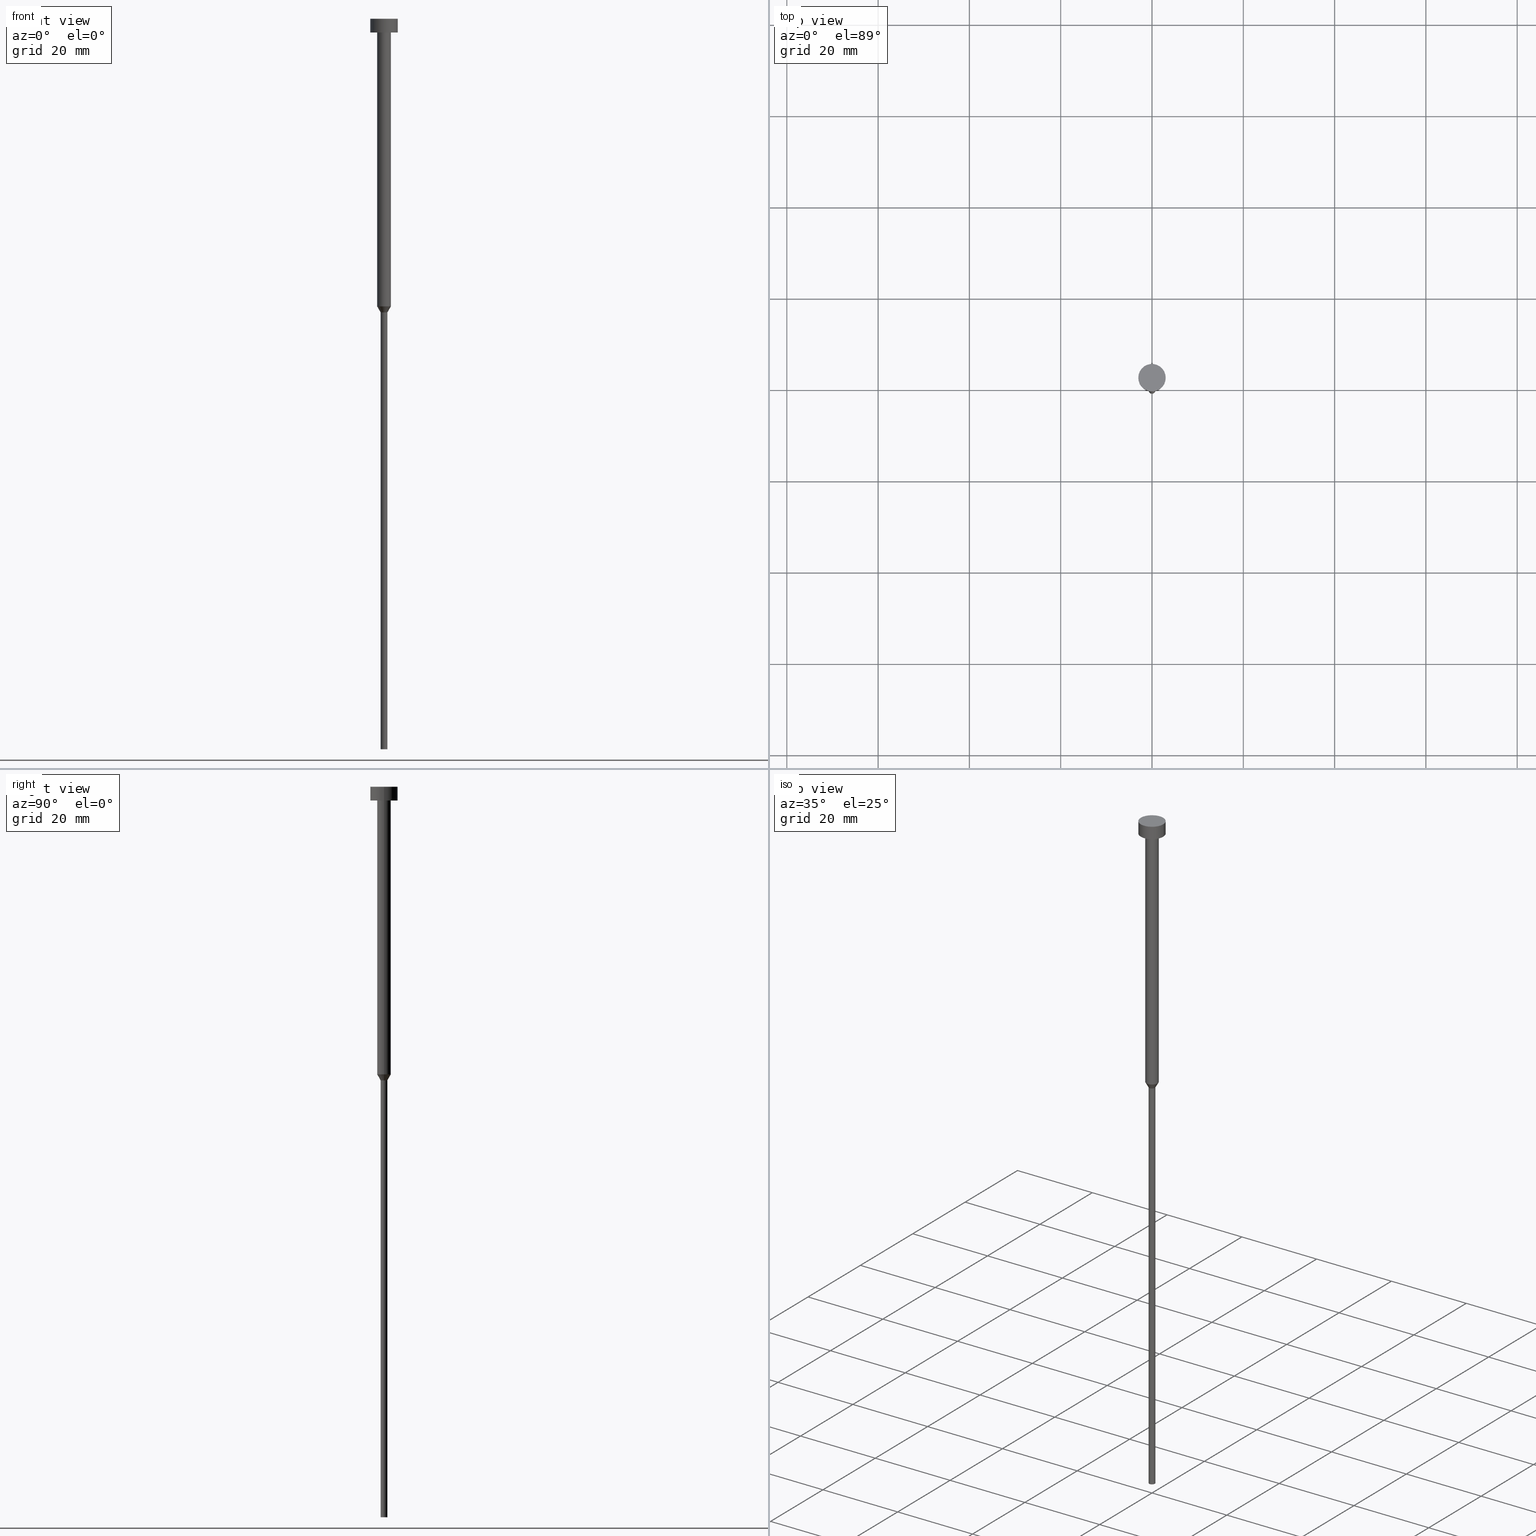
[diagram: canonical four-view strip — front | top / right | iso, engineering-drawing reading convention]
A machine part, canonical four-view strip (front | top / right | iso — engineering-drawing reading convention). The complete STEP part file that produces these views, byte-faithful:
ISO-10303-21;
HEADER;
FILE_DESCRIPTION (( 'STEP AP203' ),
    '1' );
FILE_NAME ('e818.STEP',
    '2023-02-13T10:02:30',
    ( '' ),
    ( '' ),
    'SwSTEP 2.0',
    'SolidWorks 2019',
    '' );
FILE_SCHEMA (( 'CONFIG_CONTROL_DESIGN' ));
ENDSEC;

DATA;
#1 = DIRECTION ( 'NONE',  ( -0.000000000000000000, -0.000000000000000000, 1.000000000000000000 ) ) ;
#2 = CARTESIAN_POINT ( 'NONE',  ( 0.7500000000000000000, 0.000000000000000000, 0.000000000000000000 ) ) ;
#3 =( GEOMETRIC_REPRESENTATION_CONTEXT ( 3 ) GLOBAL_UNCERTAINTY_ASSIGNED_CONTEXT ( ( #133 ) ) GLOBAL_UNIT_ASSIGNED_CONTEXT ( ( #239, #72, #183 ) ) REPRESENTATION_CONTEXT ( 'NONE', 'WORKASPACE' ) );
#4 = APPROVAL ( #98, 'NEUR�EN�' ) ;
#5 = CARTESIAN_POINT ( 'NONE',  ( 0.000000000000000000, 0.000000000000000000, -3.673940397442059868E-16 ) ) ;
#6 = CYLINDRICAL_SURFACE ( 'NONE', #177, 0.7500000000000000000 ) ;
#7 = EDGE_CURVE ( 'NONE', #68, #171, #82, .T. ) ;
#8 = ORIENTED_EDGE ( 'NONE', *, *, #110, .F. ) ;
#9 = CARTESIAN_POINT ( 'NONE',  ( 0.000000000000000000, 0.000000000000000000, -64.29903810567664380 ) ) ;
#10 = ORIENTED_EDGE ( 'NONE', *, *, #26, .T. ) ;
#11 = PERSON_AND_ORGANIZATION ( #35, #282 ) ;
#12 = VERTEX_POINT ( 'NONE', #74 ) ;
#13 = APPROVAL_ROLE ( '' ) ;
#14 = AXIS2_PLACEMENT_3D ( 'NONE', #69, #160, #37 ) ;
#15 = EDGE_LOOP ( 'NONE', ( #159, #316, #125, #127 ) ) ;
#16 = APPLICATION_PROTOCOL_DEFINITION ( 'international standard', 'config_control_design', 1994, #227 ) ;
#17 = CALENDAR_DATE ( 2023, 13, 2 ) ;
#18 = DIRECTION ( 'NONE',  ( 1.000000000000000000, 0.000000000000000000, 0.000000000000000000 ) ) ;
#19 = ORIENTED_EDGE ( 'NONE', *, *, #7, .T. ) ;
#20 = PERSON_AND_ORGANIZATION ( #35, #282 ) ;
#21 = ADVANCED_FACE ( 'NONE', ( #226 ), #168, .T. ) ;
#22 = DIRECTION ( 'NONE',  ( -0.000000000000000000, -0.000000000000000000, 1.000000000000000000 ) ) ;
#23 = CARTESIAN_POINT ( 'NONE',  ( 0.000000000000000000, 0.000000000000000000, 0.000000000000000000 ) ) ;
#24 = CYLINDRICAL_SURFACE ( 'NONE', #111, 1.500000000000000000 ) ;
#25 = AXIS2_PLACEMENT_3D ( 'NONE', #152, #124, #279 ) ;
#26 = EDGE_CURVE ( 'NONE', #153, #12, #139, .T. ) ;
#27 = DIRECTION ( 'NONE',  ( -0.5000000000000021094, 6.123233995736791920E-17, 0.8660254037844373753 ) ) ;
#28 = DIRECTION ( 'NONE',  ( -0.000000000000000000, -0.000000000000000000, 1.000000000000000000 ) ) ;
#29 = SHAPE_DEFINITION_REPRESENTATION ( #206, #81 ) ;
#30 = CARTESIAN_POINT ( 'NONE',  ( 0.000000000000000000, 0.000000000000000000, -3.000000000000000888 ) ) ;
#31 = CC_DESIGN_DATE_AND_TIME_ASSIGNMENT ( #211, #34, ( #285 ) ) ;
#32 = APPROVAL ( #135, 'NEUR�EN�' ) ;
#33 = CIRCLE ( 'NONE', #272, 0.7500000000000000000 ) ;
#34 = DATE_TIME_ROLE ( 'creation_date' ) ;
#35 = PERSON ( 'NEUR�EN�', 'NEUR�EN�', 'NEUR�EN�', ('NEUR�EN�'), ('NEUR�EN�'), ('NEUR�EN�') ) ;
#36 = CARTESIAN_POINT ( 'NONE',  ( 1.500000000000000000, 0.000000000000000000, -3.000000000000000888 ) ) ;
#37 = DIRECTION ( 'NONE',  ( 1.000000000000000000, 0.000000000000000000, 0.000000000000000000 ) ) ;
#38 = ORIENTED_EDGE ( 'NONE', *, *, #195, .F. ) ;
#39 = DIRECTION ( 'NONE',  ( 1.000000000000000000, 0.000000000000000000, 0.000000000000000000 ) ) ;
#40 = ORIENTED_EDGE ( 'NONE', *, *, #220, .F. ) ;
#41 = DIRECTION ( 'NONE',  ( -0.000000000000000000, -0.000000000000000000, 1.000000000000000000 ) ) ;
#42 = ORIENTED_EDGE ( 'NONE', *, *, #354, .F. ) ;
#43 = APPROVAL_DATE_TIME ( #294, #149 ) ;
#44 = CARTESIAN_POINT ( 'NONE',  ( -3.000000000000000000, 3.673940397442059868E-16, 0.000000000000000000 ) ) ;
#45 = EDGE_CURVE ( 'NONE', #113, #344, #320, .T. ) ;
#46 = APPROVAL_ROLE ( '' ) ;
#47 = CIRCLE ( 'NONE', #87, 0.7500000000000000000 ) ;
#48 = AXIS2_PLACEMENT_3D ( 'NONE', #257, #215, #194 ) ;
#49 = DIRECTION ( 'NONE',  ( 1.000000000000000000, 0.000000000000000000, 0.000000000000000000 ) ) ;
#50 = AXIS2_PLACEMENT_3D ( 'NONE', #355, #77, #106 ) ;
#51 = DIRECTION ( 'NONE',  ( 1.000000000000000000, 0.000000000000000000, 0.000000000000000000 ) ) ;
#52 = CARTESIAN_POINT ( 'NONE',  ( -1.500000000000000000, 1.836970198721029934E-16, -3.000000000000000888 ) ) ;
#53 = DIRECTION ( 'NONE',  ( 1.000000000000000000, 0.000000000000000000, 0.000000000000000000 ) ) ;
#54 = CC_DESIGN_SECURITY_CLASSIFICATION ( #107, ( #342 ) ) ;
#55 = EDGE_CURVE ( 'NONE', #128, #185, #78, .T. ) ;
#56 = CARTESIAN_POINT ( 'NONE',  ( 0.000000000000000000, 0.000000000000000000, 0.000000000000000000 ) ) ;
#57 = DIRECTION ( 'NONE',  ( -0.000000000000000000, -0.000000000000000000, 1.000000000000000000 ) ) ;
#58 = FACE_OUTER_BOUND ( 'NONE', #100, .T. ) ;
#59 = DIRECTION ( 'NONE',  ( 1.000000000000000000, 0.000000000000000000, 0.000000000000000000 ) ) ;
#60 = CIRCLE ( 'NONE', #163, 3.000000000000000000 ) ;
#61 = ORIENTED_EDGE ( 'NONE', *, *, #165, .T. ) ;
#62 = DIRECTION ( 'NONE',  ( -0.000000000000000000, -0.000000000000000000, 1.000000000000000000 ) ) ;
#63 = ORIENTED_EDGE ( 'NONE', *, *, #102, .F. ) ;
#64 = APPROVAL_DATE_TIME ( #181, #4 ) ;
#65 = EDGE_CURVE ( 'NONE', #89, #334, #86, .T. ) ;
#66 = ORIENTED_EDGE ( 'NONE', *, *, #93, .T. ) ;
#67 = FACE_OUTER_BOUND ( 'NONE', #244, .T. ) ;
#68 = VERTEX_POINT ( 'NONE', #204 ) ;
#69 = CARTESIAN_POINT ( 'NONE',  ( 0.000000000000000000, 0.000000000000000000, 0.000000000000000000 ) ) ;
#70 = FACE_OUTER_BOUND ( 'NONE', #286, .T. ) ;
#71 = ORIENTED_EDGE ( 'NONE', *, *, #136, .T. ) ;
#72 =( NAMED_UNIT ( * ) PLANE_ANGLE_UNIT ( ) SI_UNIT ( $, .RADIAN. ) );
#73 = ADVANCED_FACE ( 'NONE', ( #145 ), #6, .T. ) ;
#74 = CARTESIAN_POINT ( 'NONE',  ( 0.7500000000000000000, 0.000000000000000000, -64.29903810567664380 ) ) ;
#75 = VECTOR ( 'NONE', #156, 1000.000000000000000 ) ;
#76 = CYLINDRICAL_SURFACE ( 'NONE', #298, 3.000000000000000000 ) ;
#77 = DIRECTION ( 'NONE',  ( -0.000000000000000000, -0.000000000000000000, 1.000000000000000000 ) ) ;
#78 = CIRCLE ( 'NONE', #142, 3.000000000000000000 ) ;
#79 = AXIS2_PLACEMENT_3D ( 'NONE', #224, #274, #300 ) ;
#80 = CC_DESIGN_PERSON_AND_ORGANIZATION_ASSIGNMENT ( #20, #131, ( #342 ) ) ;
#81 = ADVANCED_BREP_SHAPE_REPRESENTATION ( 'e818', ( #154, #14 ), #3 ) ;
#82 = CIRCLE ( 'NONE', #287, 3.000000000000000000 ) ;
#83 = PLANE ( 'NONE',  #25 ) ;
#84 = APPLICATION_CONTEXT ( 'configuration controlled 3d designs of mechanical parts and assemblies' ) ;
#85 = ORIENTED_EDGE ( 'NONE', *, *, #93, .F. ) ;
#86 = LINE ( 'NONE', #259, #146 ) ;
#87 = AXIS2_PLACEMENT_3D ( 'NONE', #9, #172, #59 ) ;
#88 = CIRCLE ( 'NONE', #208, 1.500000000000000000 ) ;
#89 = VERTEX_POINT ( 'NONE', #202 ) ;
#90 = LOCAL_TIME ( 11, 2, 30.00000000000000000, #326 ) ;
#91 = DATE_AND_TIME ( #341, #337 ) ;
#92 = DIRECTION ( 'NONE',  ( 1.000000000000000000, 0.000000000000000000, 0.000000000000000000 ) ) ;
#93 = EDGE_CURVE ( 'NONE', #334, #344, #144, .T. ) ;
#94 = VERTEX_POINT ( 'NONE', #201 ) ;
#95 = PERSON_AND_ORGANIZATION_ROLE ( 'creator' ) ;
#96 = CARTESIAN_POINT ( 'NONE',  ( 0.000000000000000000, 0.000000000000000000, -64.29903810567664380 ) ) ;
#97 = ORIENTED_EDGE ( 'NONE', *, *, #140, .T. ) ;
#98 = APPROVAL_STATUS ( 'not_yet_approved' ) ;
#99 = DIRECTION ( 'NONE',  ( 1.000000000000000000, 0.000000000000000000, 0.000000000000000000 ) ) ;
#100 = EDGE_LOOP ( 'NONE', ( #118, #283 ) ) ;
#101 = AXIS2_PLACEMENT_3D ( 'NONE', #276, #193, #301 ) ;
#102 = EDGE_CURVE ( 'NONE', #185, #128, #60, .T. ) ;
#103 = CIRCLE ( 'NONE', #200, 0.7500000000000000000 ) ;
#104 = DIRECTION ( 'NONE',  ( -0.000000000000000000, -0.000000000000000000, 1.000000000000000000 ) ) ;
#105 = LINE ( 'NONE', #346, #233 ) ;
#106 = DIRECTION ( 'NONE',  ( 1.000000000000000000, 0.000000000000000000, 0.000000000000000000 ) ) ;
#107 = SECURITY_CLASSIFICATION ( '', '', #249 ) ;
#108 = FACE_OUTER_BOUND ( 'NONE', #236, .T. ) ;
#109 = DIRECTION ( 'NONE',  ( -0.000000000000000000, -0.000000000000000000, 1.000000000000000000 ) ) ;
#110 = EDGE_CURVE ( 'NONE', #89, #12, #47, .T. ) ;
#111 = AXIS2_PLACEMENT_3D ( 'NONE', #197, #299, #51 ) ;
#112 = DATE_AND_TIME ( #252, #90 ) ;
#113 = VERTEX_POINT ( 'NONE', #36 ) ;
#114 = CARTESIAN_POINT ( 'NONE',  ( 0.7500000000000000000, 0.000000000000000000, -160.0000000000000000 ) ) ;
#115 = DIRECTION ( 'NONE',  ( -0.000000000000000000, -0.000000000000000000, 1.000000000000000000 ) ) ;
#116 = VECTOR ( 'NONE', #186, 1000.000000000000000 ) ;
#117 = CC_DESIGN_APPROVAL ( #4, ( #285 ) ) ;
#118 = ORIENTED_EDGE ( 'NONE', *, *, #7, .F. ) ;
#119 = CC_DESIGN_PERSON_AND_ORGANIZATION_ASSIGNMENT ( #207, #151, ( #107 ) ) ;
#120 = FACE_OUTER_BOUND ( 'NONE', #278, .T. ) ;
#121 = ORIENTED_EDGE ( 'NONE', *, *, #26, .F. ) ;
#122 = COORDINATED_UNIVERSAL_TIME_OFFSET ( 1, 0, .AHEAD. ) ;
#123 = ADVANCED_FACE ( 'NONE', ( #120 ), #83, .T. ) ;
#124 = DIRECTION ( 'NONE',  ( 0.000000000000000000, 0.000000000000000000, -1.000000000000000000 ) ) ;
#125 = ORIENTED_EDGE ( 'NONE', *, *, #313, .F. ) ;
#126 = DIRECTION ( 'NONE',  ( 0.5000000000000021094, 0.000000000000000000, 0.8660254037844373753 ) ) ;
#127 = ORIENTED_EDGE ( 'NONE', *, *, #203, .F. ) ;
#128 = VERTEX_POINT ( 'NONE', #241 ) ;
#129 = APPROVAL_ROLE ( '' ) ;
#130 = CARTESIAN_POINT ( 'NONE',  ( 0.000000000000000000, 0.000000000000000000, -3.000000000000000888 ) ) ;
#131 = PERSON_AND_ORGANIZATION_ROLE ( 'design_supplier' ) ;
#132 = CC_DESIGN_APPROVAL ( #32, ( #107 ) ) ;
#133 = UNCERTAINTY_MEASURE_WITH_UNIT (LENGTH_MEASURE( 1.000000000000000082E-05 ), #239, 'distance_accuracy_value', 'NONE');
#134 = CARTESIAN_POINT ( 'NONE',  ( 0.000000000000000000, 0.000000000000000000, -3.000000000000000888 ) ) ;
#135 = APPROVAL_STATUS ( 'not_yet_approved' ) ;
#136 = EDGE_CURVE ( 'NONE', #260, #153, #242, .T. ) ;
#137 = FACE_OUTER_BOUND ( 'NONE', #262, .T. ) ;
#138 = CYLINDRICAL_SURFACE ( 'NONE', #50, 3.000000000000000000 ) ;
#139 = LINE ( 'NONE', #2, #297 ) ;
#140 = EDGE_CURVE ( 'NONE', #153, #260, #33, .T. ) ;
#141 = PRODUCT_RELATED_PRODUCT_CATEGORY ( 'detail', '', ( #238 ) ) ;
#142 = AXIS2_PLACEMENT_3D ( 'NONE', #5, #338, #343 ) ;
#143 = CIRCLE ( 'NONE', #79, 1.500000000000000000 ) ;
#144 = LINE ( 'NONE', #237, #228 ) ;
#145 = FACE_OUTER_BOUND ( 'NONE', #267, .T. ) ;
#146 = VECTOR ( 'NONE', #27, 1000.000000000000227 ) ;
#147 = CIRCLE ( 'NONE', #288, 3.000000000000000000 ) ;
#148 = LOCAL_TIME ( 11, 2, 30.00000000000000000, #214 ) ;
#149 = APPROVAL ( #189, 'NEUR�EN�' ) ;
#150 = ORIENTED_EDGE ( 'NONE', *, *, #55, .F. ) ;
#151 = PERSON_AND_ORGANIZATION_ROLE ( 'classification_officer' ) ;
#152 = CARTESIAN_POINT ( 'NONE',  ( 0.000000000000000000, 0.000000000000000000, -160.0000000000000000 ) ) ;
#153 = VERTEX_POINT ( 'NONE', #114 ) ;
#154 = MANIFOLD_SOLID_BREP ( 'Rotovat1', #240 ) ;
#155 = COORDINATED_UNIVERSAL_TIME_OFFSET ( 1, 0, .AHEAD. ) ;
#156 = DIRECTION ( 'NONE',  ( -0.000000000000000000, -0.000000000000000000, 1.000000000000000000 ) ) ;
#157 = ORIENTED_EDGE ( 'NONE', *, *, #178, .T. ) ;
#158 = CYLINDRICAL_SURFACE ( 'NONE', #179, 0.7500000000000000000 ) ;
#159 = ORIENTED_EDGE ( 'NONE', *, *, #248, .T. ) ;
#160 = DIRECTION ( 'NONE',  ( 0.000000000000000000, 0.000000000000000000, 1.000000000000000000 ) ) ;
#161 = PERSON_AND_ORGANIZATION ( #35, #282 ) ;
#162 = DIRECTION ( 'NONE',  ( -0.000000000000000000, -0.000000000000000000, 1.000000000000000000 ) ) ;
#163 = AXIS2_PLACEMENT_3D ( 'NONE', #234, #182, #284 ) ;
#164 = LINE ( 'NONE', #44, #75 ) ;
#165 = EDGE_CURVE ( 'NONE', #344, #113, #88, .T. ) ;
#166 = CARTESIAN_POINT ( 'NONE',  ( 0.000000000000000000, 0.000000000000000000, -1.836970198721029934E-16 ) ) ;
#167 = DIRECTION ( 'NONE',  ( 0.000000000000000000, -0.000000000000000000, 1.000000000000000000 ) ) ;
#168 = CONICAL_SURFACE ( 'NONE', #101, 1.500000000000000000, 0.5235987755983013692 ) ;
#169 = PLANE ( 'NONE',  #304 ) ;
#170 = ADVANCED_FACE ( 'NONE', ( #174, #58 ), #176, .T. ) ;
#171 = VERTEX_POINT ( 'NONE', #327 ) ;
#172 = DIRECTION ( 'NONE',  ( -0.000000000000000000, -0.000000000000000000, 1.000000000000000000 ) ) ;
#173 = APPROVAL_PERSON_ORGANIZATION ( #271, #4, #13 ) ;
#174 = FACE_BOUND ( 'NONE', #191, .T. ) ;
#175 = APPROVAL_DATE_TIME ( #112, #32 ) ;
#176 = PLANE ( 'NONE',  #48 ) ;
#177 = AXIS2_PLACEMENT_3D ( 'NONE', #56, #115, #280 ) ;
#178 = EDGE_CURVE ( 'NONE', #334, #94, #247, .T. ) ;
#179 = AXIS2_PLACEMENT_3D ( 'NONE', #218, #269, #315 ) ;
#180 = EDGE_LOOP ( 'NONE', ( #246, #303 ) ) ;
#181 = DATE_AND_TIME ( #245, #217 ) ;
#182 = DIRECTION ( 'NONE',  ( -0.000000000000000000, -0.000000000000000000, 1.000000000000000000 ) ) ;
#183 =( NAMED_UNIT ( * ) SI_UNIT ( $, .STERADIAN. ) SOLID_ANGLE_UNIT ( ) );
#184 = CARTESIAN_POINT ( 'NONE',  ( -3.000000000000000000, 3.673940397442059868E-16, -3.673940397442059868E-16 ) ) ;
#185 = VERTEX_POINT ( 'NONE', #184 ) ;
#186 = DIRECTION ( 'NONE',  ( -0.000000000000000000, -0.000000000000000000, 1.000000000000000000 ) ) ;
#187 = AXIS2_PLACEMENT_3D ( 'NONE', #317, #266, #99 ) ;
#188 = ORIENTED_EDGE ( 'NONE', *, *, #136, .F. ) ;
#189 = APPROVAL_STATUS ( 'not_yet_approved' ) ;
#190 = CYLINDRICAL_SURFACE ( 'NONE', #254, 1.500000000000000000 ) ;
#191 = EDGE_LOOP ( 'NONE', ( #347, #61 ) ) ;
#192 = COORDINATED_UNIVERSAL_TIME_OFFSET ( 1, 0, .AHEAD. ) ;
#193 = DIRECTION ( 'NONE',  ( -0.000000000000000000, -0.000000000000000000, 1.000000000000000000 ) ) ;
#194 = DIRECTION ( 'NONE',  ( -1.000000000000000000, 0.000000000000000000, -0.000000000000000000 ) ) ;
#195 = EDGE_CURVE ( 'NONE', #260, #89, #295, .T. ) ;
#196 = PERSON_AND_ORGANIZATION ( #35, #282 ) ;
#197 = CARTESIAN_POINT ( 'NONE',  ( 0.000000000000000000, 0.000000000000000000, 0.000000000000000000 ) ) ;
#198 = ORIENTED_EDGE ( 'NONE', *, *, #65, .F. ) ;
#199 = EDGE_CURVE ( 'NONE', #171, #185, #164, .T. ) ;
#200 = AXIS2_PLACEMENT_3D ( 'NONE', #96, #22, #39 ) ;
#201 = CARTESIAN_POINT ( 'NONE',  ( 1.500000000000000000, 0.000000000000000000, -63.00000000000000000 ) ) ;
#202 = CARTESIAN_POINT ( 'NONE',  ( -0.7500000000000000000, 9.184850993605149670E-17, -64.29903810567664380 ) ) ;
#203 = EDGE_CURVE ( 'NONE', #12, #94, #352, .T. ) ;
#204 = CARTESIAN_POINT ( 'NONE',  ( 3.000000000000000000, 0.000000000000000000, -3.000000000000000888 ) ) ;
#205 = ORIENTED_EDGE ( 'NONE', *, *, #354, .T. ) ;
#206 = PRODUCT_DEFINITION_SHAPE ( 'NONE', 'NONE',  #285 ) ;
#207 = PERSON_AND_ORGANIZATION ( #35, #282 ) ;
#208 = AXIS2_PLACEMENT_3D ( 'NONE', #30, #232, #308 ) ;
#209 = DATE_TIME_ROLE ( 'classification_date' ) ;
#210 = ORIENTED_EDGE ( 'NONE', *, *, #110, .T. ) ;
#211 = DATE_AND_TIME ( #17, #148 ) ;
#212 = DIRECTION ( 'NONE',  ( 1.000000000000000000, 0.000000000000000000, 0.000000000000000000 ) ) ;
#213 = ORIENTED_EDGE ( 'NONE', *, *, #248, .F. ) ;
#214 = COORDINATED_UNIVERSAL_TIME_OFFSET ( 1, 0, .AHEAD. ) ;
#215 = DIRECTION ( 'NONE',  ( 0.000000000000000000, 0.000000000000000000, -1.000000000000000000 ) ) ;
#216 = AXIS2_PLACEMENT_3D ( 'NONE', #221, #296, #49 ) ;
#217 = LOCAL_TIME ( 11, 2, 30.00000000000000000, #155 ) ;
#218 = CARTESIAN_POINT ( 'NONE',  ( 0.000000000000000000, 0.000000000000000000, 0.000000000000000000 ) ) ;
#219 = DIRECTION ( 'NONE',  ( -0.000000000000000000, -0.000000000000000000, 1.000000000000000000 ) ) ;
#220 = EDGE_CURVE ( 'NONE', #94, #113, #105, .T. ) ;
#221 = CARTESIAN_POINT ( 'NONE',  ( 0.000000000000000000, 0.000000000000000000, -63.00000000000000000 ) ) ;
#222 = VECTOR ( 'NONE', #323, 1000.000000000000000 ) ;
#223 = CARTESIAN_POINT ( 'NONE',  ( -1.500000000000000000, 1.836970198721029934E-16, -63.00000000000000000 ) ) ;
#224 = CARTESIAN_POINT ( 'NONE',  ( 0.000000000000000000, 0.000000000000000000, -63.00000000000000000 ) ) ;
#225 = ORIENTED_EDGE ( 'NONE', *, *, #203, .T. ) ;
#226 = FACE_OUTER_BOUND ( 'NONE', #15, .T. ) ;
#227 = APPLICATION_CONTEXT ( 'configuration controlled 3d designs of mechanical parts and assemblies' ) ;
#228 = VECTOR ( 'NONE', #62, 1000.000000000000000 ) ;
#229 = CC_DESIGN_APPROVAL ( #149, ( #342 ) ) ;
#230 = EDGE_LOOP ( 'NONE', ( #85, #157, #318, #243 ) ) ;
#231 = ADVANCED_FACE ( 'NONE', ( #67 ), #158, .T. ) ;
#232 = DIRECTION ( 'NONE',  ( -0.000000000000000000, -0.000000000000000000, 1.000000000000000000 ) ) ;
#233 = VECTOR ( 'NONE', #104, 1000.000000000000000 ) ;
#234 = CARTESIAN_POINT ( 'NONE',  ( 0.000000000000000000, 0.000000000000000000, -3.673940397442059868E-16 ) ) ;
#235 = CC_DESIGN_PERSON_AND_ORGANIZATION_ASSIGNMENT ( #161, #353, ( #342 ) ) ;
#236 = EDGE_LOOP ( 'NONE', ( #19, #310, #150, #42 ) ) ;
#237 = CARTESIAN_POINT ( 'NONE',  ( -1.500000000000000000, 1.836970198721029934E-16, 0.000000000000000000 ) ) ;
#238 = PRODUCT ( 'e818', 'e818', '', ( #348 ) ) ;
#239 =( LENGTH_UNIT ( ) NAMED_UNIT ( * ) SI_UNIT ( .MILLI., .METRE. ) );
#240 = CLOSED_SHELL ( 'NONE', ( #328, #270, #21, #73, #123, #231, #263, #277, #170, #332, #305 ) ) ;
#241 = CARTESIAN_POINT ( 'NONE',  ( 3.000000000000000000, 0.000000000000000000, -3.673940397442059868E-16 ) ) ;
#242 = CIRCLE ( 'NONE', #329, 0.7500000000000000000 ) ;
#243 = ORIENTED_EDGE ( 'NONE', *, *, #165, .F. ) ;
#244 = EDGE_LOOP ( 'NONE', ( #38, #71, #10, #8 ) ) ;
#245 = CALENDAR_DATE ( 2023, 13, 2 ) ;
#246 = ORIENTED_EDGE ( 'NONE', *, *, #55, .T. ) ;
#247 = CIRCLE ( 'NONE', #216, 1.500000000000000000 ) ;
#248 = EDGE_CURVE ( 'NONE', #12, #89, #103, .T. ) ;
#249 = SECURITY_CLASSIFICATION_LEVEL ( 'unclassified' ) ;
#250 = CARTESIAN_POINT ( 'NONE',  ( -0.7500000000000000000, 9.184850993605149670E-17, -160.0000000000000000 ) ) ;
#251 = DIRECTION ( 'NONE',  ( 1.000000000000000000, 0.000000000000000000, 0.000000000000000000 ) ) ;
#252 = CALENDAR_DATE ( 2023, 13, 2 ) ;
#253 = EDGE_CURVE ( 'NONE', #171, #68, #147, .T. ) ;
#254 = AXIS2_PLACEMENT_3D ( 'NONE', #292, #41, #18 ) ;
#255 = APPROVAL_PERSON_ORGANIZATION ( #319, #149, #129 ) ;
#256 = DIRECTION ( 'NONE',  ( 1.000000000000000000, 0.000000000000000000, 0.000000000000000000 ) ) ;
#257 = CARTESIAN_POINT ( 'NONE',  ( 0.000000000000000000, -3.000000000000000000, -3.000000000000000888 ) ) ;
#258 = ORIENTED_EDGE ( 'NONE', *, *, #199, .F. ) ;
#259 = CARTESIAN_POINT ( 'NONE',  ( -1.500000000000000000, 1.836970198721029934E-16, -63.00000000000000000 ) ) ;
#260 = VERTEX_POINT ( 'NONE', #250 ) ;
#261 = DIRECTION ( 'NONE',  ( -0.000000000000000000, -0.000000000000000000, 1.000000000000000000 ) ) ;
#262 = EDGE_LOOP ( 'NONE', ( #258, #322, #205, #63 ) ) ;
#263 = ADVANCED_FACE ( 'NONE', ( #321 ), #336, .T. ) ;
#264 = ORIENTED_EDGE ( 'NONE', *, *, #45, .F. ) ;
#265 = APPLICATION_PROTOCOL_DEFINITION ( 'international standard', 'config_control_design', 1994, #84 ) ;
#266 = DIRECTION ( 'NONE',  ( -0.000000000000000000, -0.000000000000000000, 1.000000000000000000 ) ) ;
#267 = EDGE_LOOP ( 'NONE', ( #97, #306, #213, #121 ) ) ;
#268 = PERSON_AND_ORGANIZATION ( #35, #282 ) ;
#269 = DIRECTION ( 'NONE',  ( -0.000000000000000000, -0.000000000000000000, 1.000000000000000000 ) ) ;
#270 = ADVANCED_FACE ( 'NONE', ( #70 ), #190, .T. ) ;
#271 = PERSON_AND_ORGANIZATION ( #35, #282 ) ;
#272 = AXIS2_PLACEMENT_3D ( 'NONE', #281, #57, #256 ) ;
#273 = CARTESIAN_POINT ( 'NONE',  ( 1.500000000000000000, 0.000000000000000000, -63.00000000000000000 ) ) ;
#274 = DIRECTION ( 'NONE',  ( -0.000000000000000000, -0.000000000000000000, 1.000000000000000000 ) ) ;
#275 = LINE ( 'NONE', #290, #222 ) ;
#276 = CARTESIAN_POINT ( 'NONE',  ( 0.000000000000000000, 0.000000000000000000, -63.00000000000000000 ) ) ;
#277 = ADVANCED_FACE ( 'NONE', ( #324 ), #24, .T. ) ;
#278 = EDGE_LOOP ( 'NONE', ( #340, #188 ) ) ;
#279 = DIRECTION ( 'NONE',  ( -1.000000000000000000, 0.000000000000000000, -0.000000000000000000 ) ) ;
#280 = DIRECTION ( 'NONE',  ( 1.000000000000000000, 0.000000000000000000, 0.000000000000000000 ) ) ;
#281 = CARTESIAN_POINT ( 'NONE',  ( 0.000000000000000000, 0.000000000000000000, -160.0000000000000000 ) ) ;
#282 = ORGANIZATION ( 'NEUR�EN�', 'NEUR�EN�', '' ) ;
#283 = ORIENTED_EDGE ( 'NONE', *, *, #253, .F. ) ;
#284 = DIRECTION ( 'NONE',  ( 1.000000000000000000, 0.000000000000000000, 0.000000000000000000 ) ) ;
#285 = PRODUCT_DEFINITION ( 'NEZN�M�', '', #342, #302 ) ;
#286 = EDGE_LOOP ( 'NONE', ( #314, #66, #264, #40 ) ) ;
#287 = AXIS2_PLACEMENT_3D ( 'NONE', #130, #219, #325 ) ;
#288 = AXIS2_PLACEMENT_3D ( 'NONE', #134, #162, #212 ) ;
#289 = APPROVAL_PERSON_ORGANIZATION ( #196, #32, #46 ) ;
#290 = CARTESIAN_POINT ( 'NONE',  ( 3.000000000000000000, 0.000000000000000000, 0.000000000000000000 ) ) ;
#291 = CC_DESIGN_PERSON_AND_ORGANIZATION_ASSIGNMENT ( #11, #95, ( #285 ) ) ;
#292 = CARTESIAN_POINT ( 'NONE',  ( 0.000000000000000000, 0.000000000000000000, 0.000000000000000000 ) ) ;
#293 = ORIENTED_EDGE ( 'NONE', *, *, #178, .F. ) ;
#294 = DATE_AND_TIME ( #351, #312 ) ;
#295 = LINE ( 'NONE', #349, #116 ) ;
#296 = DIRECTION ( 'NONE',  ( -0.000000000000000000, -0.000000000000000000, 1.000000000000000000 ) ) ;
#297 = VECTOR ( 'NONE', #109, 1000.000000000000000 ) ;
#298 = AXIS2_PLACEMENT_3D ( 'NONE', #23, #1, #251 ) ;
#299 = DIRECTION ( 'NONE',  ( -0.000000000000000000, -0.000000000000000000, 1.000000000000000000 ) ) ;
#300 = DIRECTION ( 'NONE',  ( 1.000000000000000000, 0.000000000000000000, 0.000000000000000000 ) ) ;
#301 = DIRECTION ( 'NONE',  ( 1.000000000000000000, 0.000000000000000000, 0.000000000000000000 ) ) ;
#302 = DESIGN_CONTEXT ( 'detailed design', #227, 'design' ) ;
#303 = ORIENTED_EDGE ( 'NONE', *, *, #102, .T. ) ;
#304 = AXIS2_PLACEMENT_3D ( 'NONE', #166, #167, #53 ) ;
#305 = ADVANCED_FACE ( 'NONE', ( #330 ), #169, .T. ) ;
#306 = ORIENTED_EDGE ( 'NONE', *, *, #195, .T. ) ;
#307 = VECTOR ( 'NONE', #126, 1000.000000000000227 ) ;
#308 = DIRECTION ( 'NONE',  ( 1.000000000000000000, 0.000000000000000000, 0.000000000000000000 ) ) ;
#309 = CARTESIAN_POINT ( 'NONE',  ( 0.000000000000000000, 0.000000000000000000, -160.0000000000000000 ) ) ;
#310 = ORIENTED_EDGE ( 'NONE', *, *, #199, .T. ) ;
#311 = DIRECTION ( 'NONE',  ( 1.000000000000000000, 0.000000000000000000, 0.000000000000000000 ) ) ;
#312 = LOCAL_TIME ( 11, 2, 30.00000000000000000, #192 ) ;
#313 = EDGE_CURVE ( 'NONE', #94, #334, #143, .T. ) ;
#314 = ORIENTED_EDGE ( 'NONE', *, *, #313, .T. ) ;
#315 = DIRECTION ( 'NONE',  ( 1.000000000000000000, 0.000000000000000000, 0.000000000000000000 ) ) ;
#316 = ORIENTED_EDGE ( 'NONE', *, *, #65, .T. ) ;
#317 = CARTESIAN_POINT ( 'NONE',  ( 0.000000000000000000, 0.000000000000000000, -63.00000000000000000 ) ) ;
#318 = ORIENTED_EDGE ( 'NONE', *, *, #220, .T. ) ;
#319 = PERSON_AND_ORGANIZATION ( #35, #282 ) ;
#320 = CIRCLE ( 'NONE', #333, 1.500000000000000000 ) ;
#321 = FACE_OUTER_BOUND ( 'NONE', #350, .T. ) ;
#322 = ORIENTED_EDGE ( 'NONE', *, *, #253, .T. ) ;
#323 = DIRECTION ( 'NONE',  ( -0.000000000000000000, -0.000000000000000000, 1.000000000000000000 ) ) ;
#324 = FACE_OUTER_BOUND ( 'NONE', #230, .T. ) ;
#325 = DIRECTION ( 'NONE',  ( 1.000000000000000000, 0.000000000000000000, 0.000000000000000000 ) ) ;
#326 = COORDINATED_UNIVERSAL_TIME_OFFSET ( 1, 0, .AHEAD. ) ;
#327 = CARTESIAN_POINT ( 'NONE',  ( -3.000000000000000000, 3.673940397442059868E-16, -3.000000000000000888 ) ) ;
#328 = ADVANCED_FACE ( 'NONE', ( #108 ), #76, .T. ) ;
#329 = AXIS2_PLACEMENT_3D ( 'NONE', #309, #28, #92 ) ;
#330 = FACE_OUTER_BOUND ( 'NONE', #180, .T. ) ;
#331 = CARTESIAN_POINT ( 'NONE',  ( 0.000000000000000000, 0.000000000000000000, -3.000000000000000888 ) ) ;
#332 = ADVANCED_FACE ( 'NONE', ( #137 ), #138, .T. ) ;
#333 = AXIS2_PLACEMENT_3D ( 'NONE', #331, #261, #311 ) ;
#334 = VERTEX_POINT ( 'NONE', #223 ) ;
#335 = CC_DESIGN_DATE_AND_TIME_ASSIGNMENT ( #91, #209, ( #107 ) ) ;
#336 = CONICAL_SURFACE ( 'NONE', #187, 1.500000000000000000, 0.5235987755983013692 ) ;
#337 = LOCAL_TIME ( 11, 2, 30.00000000000000000, #122 ) ;
#338 = DIRECTION ( 'NONE',  ( -0.000000000000000000, -0.000000000000000000, 1.000000000000000000 ) ) ;
#339 = CC_DESIGN_PERSON_AND_ORGANIZATION_ASSIGNMENT ( #268, #345, ( #238 ) ) ;
#340 = ORIENTED_EDGE ( 'NONE', *, *, #140, .F. ) ;
#341 = CALENDAR_DATE ( 2023, 13, 2 ) ;
#342 = PRODUCT_DEFINITION_FORMATION_WITH_SPECIFIED_SOURCE ( 'LIBOVOLN�', '', #238, .NOT_KNOWN. ) ;
#343 = DIRECTION ( 'NONE',  ( 1.000000000000000000, 0.000000000000000000, 0.000000000000000000 ) ) ;
#344 = VERTEX_POINT ( 'NONE', #52 ) ;
#345 = PERSON_AND_ORGANIZATION_ROLE ( 'design_owner' ) ;
#346 = CARTESIAN_POINT ( 'NONE',  ( 1.500000000000000000, 0.000000000000000000, 0.000000000000000000 ) ) ;
#347 = ORIENTED_EDGE ( 'NONE', *, *, #45, .T. ) ;
#348 = MECHANICAL_CONTEXT ( 'NONE', #84, 'mechanical' ) ;
#349 = CARTESIAN_POINT ( 'NONE',  ( -0.7500000000000000000, 9.184850993605149670E-17, 0.000000000000000000 ) ) ;
#350 = EDGE_LOOP ( 'NONE', ( #198, #210, #225, #293 ) ) ;
#351 = CALENDAR_DATE ( 2023, 13, 2 ) ;
#352 = LINE ( 'NONE', #273, #307 ) ;
#353 = PERSON_AND_ORGANIZATION_ROLE ( 'creator' ) ;
#354 = EDGE_CURVE ( 'NONE', #68, #128, #275, .T. ) ;
#355 = CARTESIAN_POINT ( 'NONE',  ( 0.000000000000000000, 0.000000000000000000, 0.000000000000000000 ) ) ;
ENDSEC;
END-ISO-10303-21;
